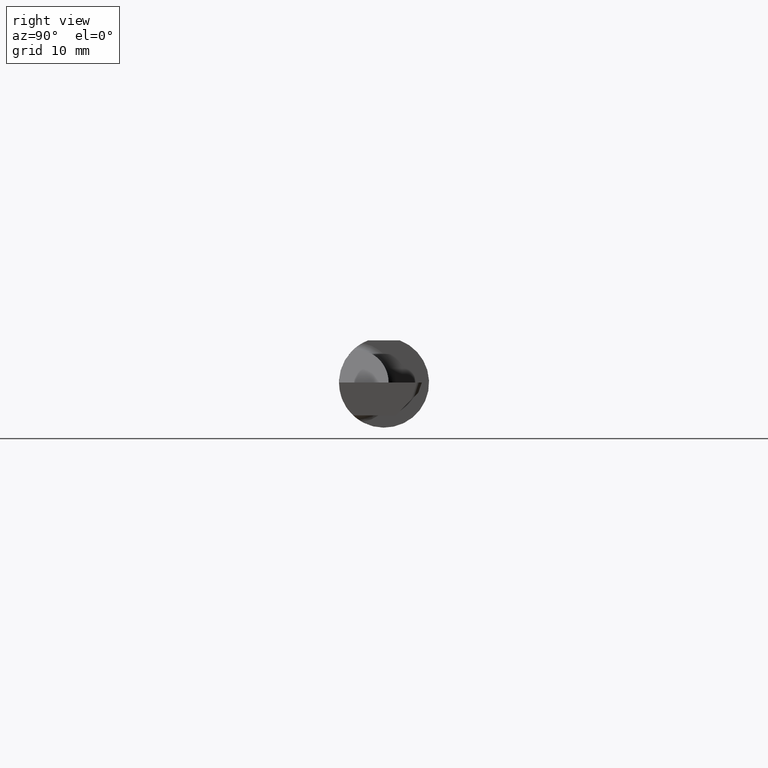
[diagram: clean part render]
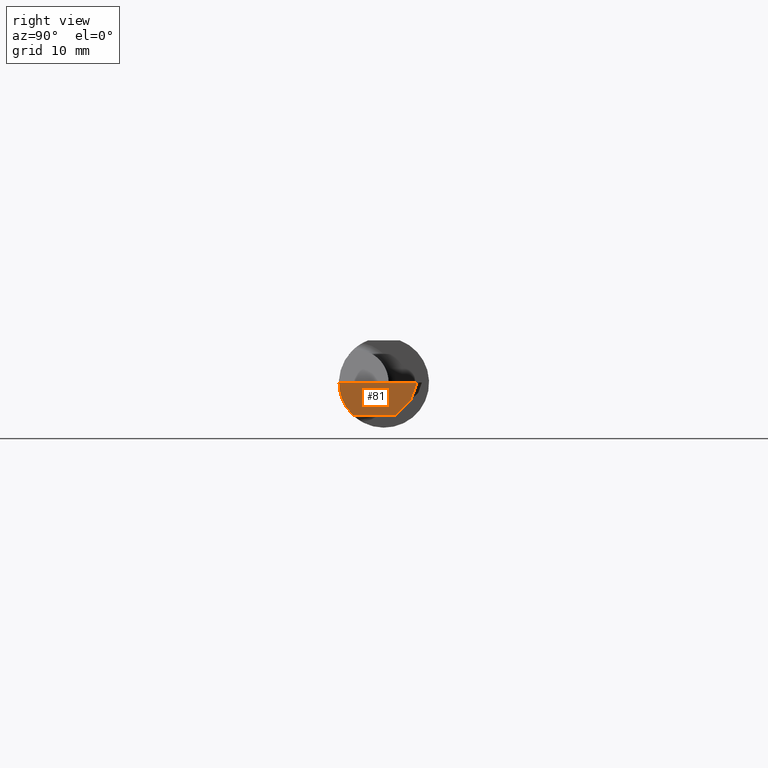
[diagram: same view with one face highlighted and labeled with its STEP entity id]
A machine part, right view. The second image highlights one B-rep face of the part: STEP entity #81.
In plain terms, the highlighted planar face has unit normal (-0.9916, 0.0872, 0.0955).
Its self-contained STEP definition (entity closure, byte-faithful):
#6 = LINE ( 'NONE', #162, #233 ) ;
#17 = DIRECTION ( 'NONE',  ( 0.1291247811991004801, 0.7036503086038432553, 0.6987152739721671502 ) ) ;
#57 = EDGE_CURVE ( 'NONE', #609, #370, #947, .T. ) ;
#81 = ADVANCED_FACE ( 'NONE', ( #242 ), #481, .F. ) ;
#95 = DIRECTION ( 'NONE',  ( -0.9916084153140646285, 0.08715574274765401641, 0.09548103049524714336 ) ) ;
#96 = ORIENTED_EDGE ( 'NONE', *, *, #960, .F. ) ;
#99 = DIRECTION ( 'NONE',  ( 0.09584575252021033942, 0.000000000000000000, 0.9953961983671800740 ) ) ;
#105 = VECTOR ( 'NONE', #579, 39.37007874015748854 ) ;
#119 = VERTEX_POINT ( 'NONE', #398 ) ;
#135 = ORIENTED_EDGE ( 'NONE', *, *, #245, .T. ) ;
#143 = LINE ( 'NONE', #719, #249 ) ;
#162 = CARTESIAN_POINT ( 'NONE',  ( 2.454771408808558597, -0.005507605120268399025, -0.3442902698503672032 ) ) ;
#167 = CARTESIAN_POINT ( 'NONE',  ( 2.470488995690050871, -0.1560999999999999333, -0.04359511292662830023 ) ) ;
#171 = CARTESIAN_POINT ( 'NONE',  ( 2.463796609867928478, -0.05372787596447568120, -0.2065441775315644823 ) ) ;
#220 = DIRECTION ( 'NONE',  ( 0.1190197996998546559, 0.3271428211025108057, 0.9374496583179796616 ) ) ;
#233 = VECTOR ( 'NONE', #220, 39.37007874015748854 ) ;
#238 = CARTESIAN_POINT ( 'NONE',  ( 2.490836349818032591, 0.09362200671312756461, -0.06022772973645311445 ) ) ;
#239 = AXIS2_PLACEMENT_3D ( 'NONE', #477, #95, #99 ) ;
#242 = FACE_OUTER_BOUND ( 'NONE', #930, .T. ) ;
#245 = EDGE_CURVE ( 'NONE', #575, #609, #442, .T. ) ;
#247 = CARTESIAN_POINT ( 'NONE',  ( 2.468817216828908201, -0.09810000000000000664, -0.1138999999999999457 ) ) ;
#249 = VECTOR ( 'NONE', #784, 39.37007874015748854 ) ;
#282 = EDGE_CURVE ( 'NONE', #370, #658, #6, .T. ) ;
#314 = CARTESIAN_POINT ( 'NONE',  ( 2.468058591229436605, -0.1071233944954127215, -0.1135420113956950999 ) ) ;
#343 = CARTESIAN_POINT ( 'NONE',  ( 2.488826528082740186, 0.1295545503305060575, -0.1138999999999999457 ) ) ;
#369 = EDGE_CURVE ( 'NONE', #119, #658, #143, .T. ) ;
#370 = VERTEX_POINT ( 'NONE', #238 ) ;
#398 = CARTESIAN_POINT ( 'NONE',  ( 2.474686727619818338, -0.1560999999999999888, -1.997916641087688092E-17 ) ) ;
#403 = CARTESIAN_POINT ( 'NONE',  ( 2.480917545388812151, 0.03957064854013014193, -0.1138999999999999457 ) ) ;
#408 =( BOUNDED_CURVE ( )  B_SPLINE_CURVE ( 3, ( #314, #931, #167, #804 ),
 .UNSPECIFIED., .F., .F. ) 
 B_SPLINE_CURVE_WITH_KNOTS ( ( 4, 4 ),
 ( 0.01647296458214366974, 0.8309504825764487679 ),
 .UNSPECIFIED. ) 
 CURVE ( )  GEOMETRIC_REPRESENTATION_ITEM ( )  RATIONAL_B_SPLINE_CURVE ( ( 1.000000000000000000, 0.9454786543792904618, 0.9454786543792904618, 1.000000000000000000 ) ) 
 REPRESENTATION_ITEM ( '' )  );
#442 = LINE ( 'NONE', #343, #105 ) ;
#443 = CARTESIAN_POINT ( 'NONE',  ( 2.468817216828908201, -0.09810000000000000664, -0.1138999999999999457 ) ) ;
#466 = CARTESIAN_POINT ( 'NONE',  ( 2.498482938907916395, 0.1146397426947429188, -3.995833282175376183E-17 ) ) ;
#477 = CARTESIAN_POINT ( 'NONE',  ( 2.462141337220449255, 0.1319000000000000450, -0.3931772458887379806 ) ) ;
#481 = PLANE ( 'NONE',  #239 ) ;
#492 = EDGE_CURVE ( 'NONE', #895, #575, #577, .T. ) ;
#575 = VERTEX_POINT ( 'NONE', #247 ) ;
#577 =( BOUNDED_CURVE ( )  B_SPLINE_CURVE ( 3, ( #614, #910, #900, #443 ),
 .UNSPECIFIED., .F., .F. ) 
 B_SPLINE_CURVE_WITH_KNOTS ( ( 4, 4 ),
 ( 0.6605406648508442835, 0.7398458442184473460 ),
 .UNSPECIFIED. ) 
 CURVE ( )  GEOMETRIC_REPRESENTATION_ITEM ( )  RATIONAL_B_SPLINE_CURVE ( ( 1.000000000000000000, 0.9994759593794937391, 0.9994759593794937391, 1.000000000000000000 ) ) 
 REPRESENTATION_ITEM ( '' )  );
#579 = DIRECTION ( 'NONE',  ( 0.08755576316970543893, 0.9961596199082607406, -6.855493397359274931E-17 ) ) ;
#594 = ORIENTED_EDGE ( 'NONE', *, *, #369, .F. ) ;
#601 = VECTOR ( 'NONE', #17, 39.37007874015748143 ) ;
#609 = VERTEX_POINT ( 'NONE', #403 ) ;
#614 = CARTESIAN_POINT ( 'NONE',  ( 2.468058591229436605, -0.1071233944954127215, -0.1135420113956950999 ) ) ;
#658 = VERTEX_POINT ( 'NONE', #466 ) ;
#667 = ORIENTED_EDGE ( 'NONE', *, *, #282, .T. ) ;
#705 = ORIENTED_EDGE ( 'NONE', *, *, #492, .T. ) ;
#719 = CARTESIAN_POINT ( 'NONE',  ( 2.507962491253655557, 0.2224926917156815065, -3.995833282175376183E-17 ) ) ;
#784 = DIRECTION ( 'NONE',  ( 0.08755576316970543893, 0.9961596199082607406, 0.000000000000000000 ) ) ;
#804 = CARTESIAN_POINT ( 'NONE',  ( 2.474686727619818338, -0.1560999999999999888, -1.997916641087688092E-17 ) ) ;
#895 = VERTEX_POINT ( 'NONE', #908 ) ;
#900 = CARTESIAN_POINT ( 'NONE',  ( 2.468552504811176274, -0.1011117426131863950, -0.1138999999999999457 ) ) ;
#908 = CARTESIAN_POINT ( 'NONE',  ( 2.468058591229436605, -0.1071233944954127215, -0.1135420113956950999 ) ) ;
#910 = CARTESIAN_POINT ( 'NONE',  ( 2.468299497024995404, -0.1041211178131711129, -0.1137806078989209435 ) ) ;
#930 = EDGE_LOOP ( 'NONE', ( #1001, #667, #594, #96, #705, #135 ) ) ;
#931 = CARTESIAN_POINT ( 'NONE',  ( 2.468152212319468131, -0.1388330473378972807, -0.08362492952438660421 ) ) ;
#947 = LINE ( 'NONE', #171, #601 ) ;
#960 = EDGE_CURVE ( 'NONE', #895, #119, #408, .T. ) ;
#1001 = ORIENTED_EDGE ( 'NONE', *, *, #57, .T. ) ;